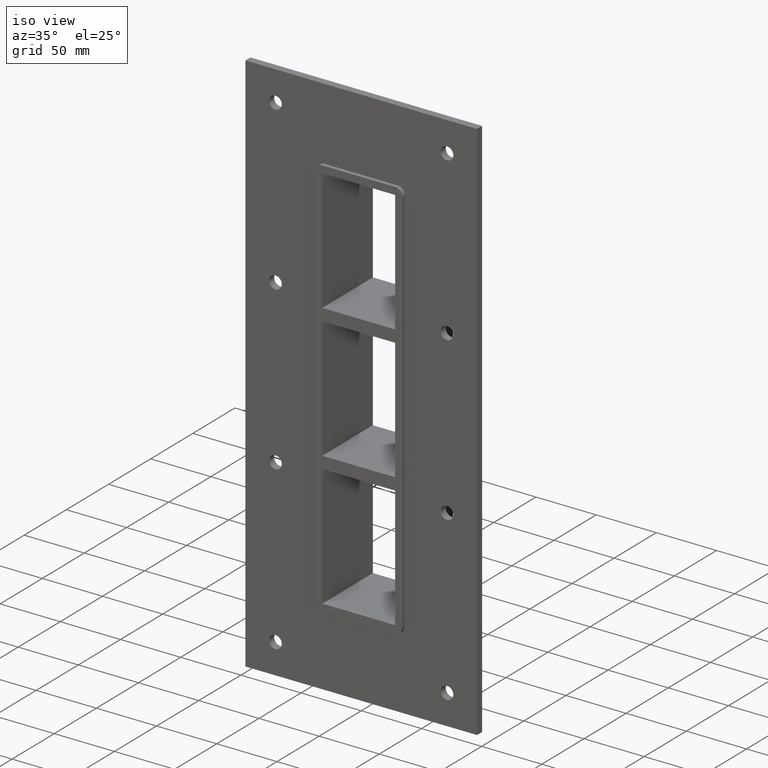
[diagram: clean part render]
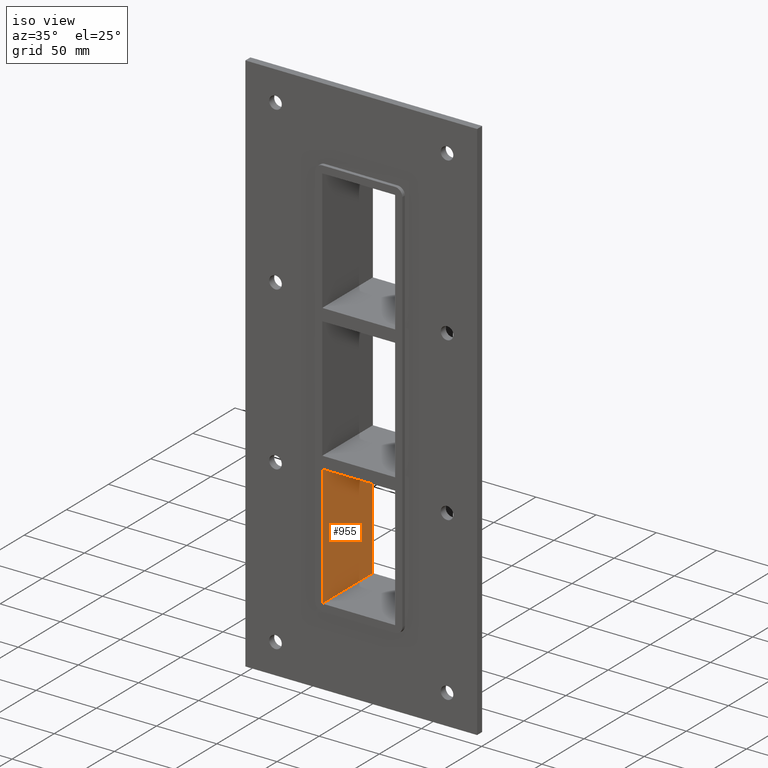
[diagram: same view with one face highlighted and labeled with its STEP entity id]
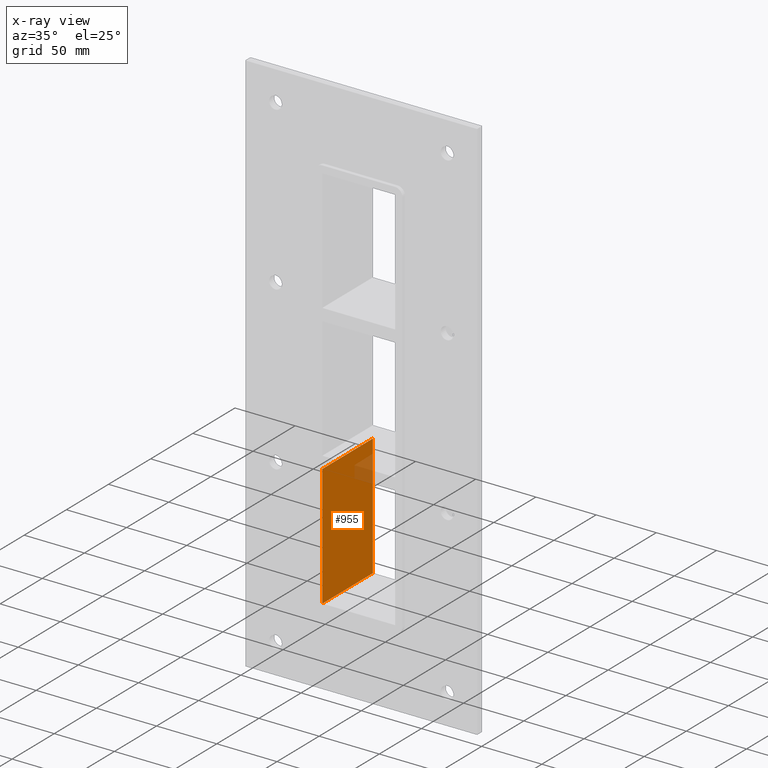
[diagram: x-ray of the same camera — body ghosted, the highlighted face saturated]
A machine part, iso view. The second image highlights one B-rep face of the part: STEP entity #955.
The next image is the same camera in x-ray: the body ghosted, the highlighted face saturated — about 6% of this face is hidden behind the body in this view.
In plain terms, the highlighted planar face has unit normal (-1, 0, 0).
Its self-contained STEP definition (entity closure, byte-faithful):
#472=CARTESIAN_POINT('',(-30.249999999997055,-3.0,-60.500000000010914));
#473=VERTEX_POINT('',#472);
#480=CARTESIAN_POINT('',(-30.249999999997055,57.0,-60.500000000010914));
#481=VERTEX_POINT('',#480);
#482=CARTESIAN_POINT('',(-30.249999999999986,57.000000000000007,-60.500000000010914));
#483=DIRECTION('',(0.0,-1.0,0.0));
#484=VECTOR('',#483,60.000000000000007);
#485=LINE('',#482,#484);
#486=EDGE_CURVE('',#481,#473,#485,.T.);
#925=CARTESIAN_POINT('',(-30.249999999999986,0.0,-161.5));
#926=DIRECTION('',(-1.0,0.0,0.0));
#927=DIRECTION('',(0.0,0.0,1.0));
#928=AXIS2_PLACEMENT_3D('',#925,#926,#927);
#929=PLANE('',#928);
#930=ORIENTED_EDGE('',*,*,#486,.T.);
#931=CARTESIAN_POINT('',(-30.249999999999986,-3.0,-161.5));
#932=VERTEX_POINT('',#931);
#933=CARTESIAN_POINT('',(-30.249999999999986,-3.0,-161.5));
#934=DIRECTION('',(0.0,0.0,1.0));
#935=VECTOR('',#934,100.99999999998909);
#936=LINE('',#933,#935);
#937=EDGE_CURVE('',#932,#473,#936,.T.);
#938=ORIENTED_EDGE('',*,*,#937,.F.);
#939=CARTESIAN_POINT('',(-30.249999999999986,57.0,-161.5));
#940=VERTEX_POINT('',#939);
#941=CARTESIAN_POINT('',(-30.249999999999986,-3.0,-161.5));
#942=DIRECTION('',(0.0,1.0,0.0));
#943=VECTOR('',#942,60.0);
#944=LINE('',#941,#943);
#945=EDGE_CURVE('',#932,#940,#944,.T.);
#946=ORIENTED_EDGE('',*,*,#945,.T.);
#947=CARTESIAN_POINT('',(-30.249999999999986,57.0,-60.500000000010921));
#948=DIRECTION('',(0.0,0.0,-1.0));
#949=VECTOR('',#948,100.99999999998909);
#950=LINE('',#947,#949);
#951=EDGE_CURVE('',#481,#940,#950,.T.);
#952=ORIENTED_EDGE('',*,*,#951,.F.);
#953=EDGE_LOOP('',(#930,#938,#946,#952));
#954=FACE_OUTER_BOUND('',#953,.T.);
#955=ADVANCED_FACE('',(#954),#929,.F.);